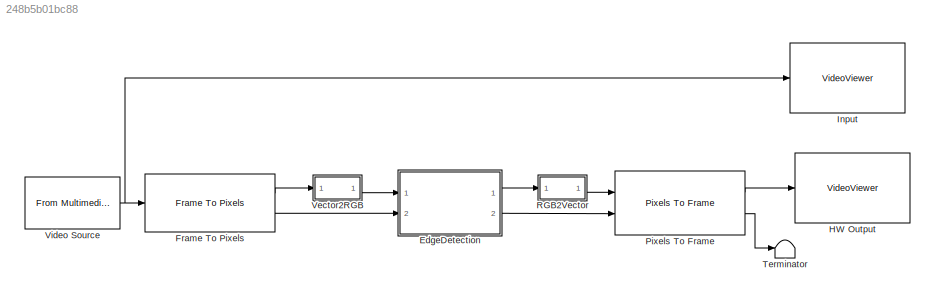
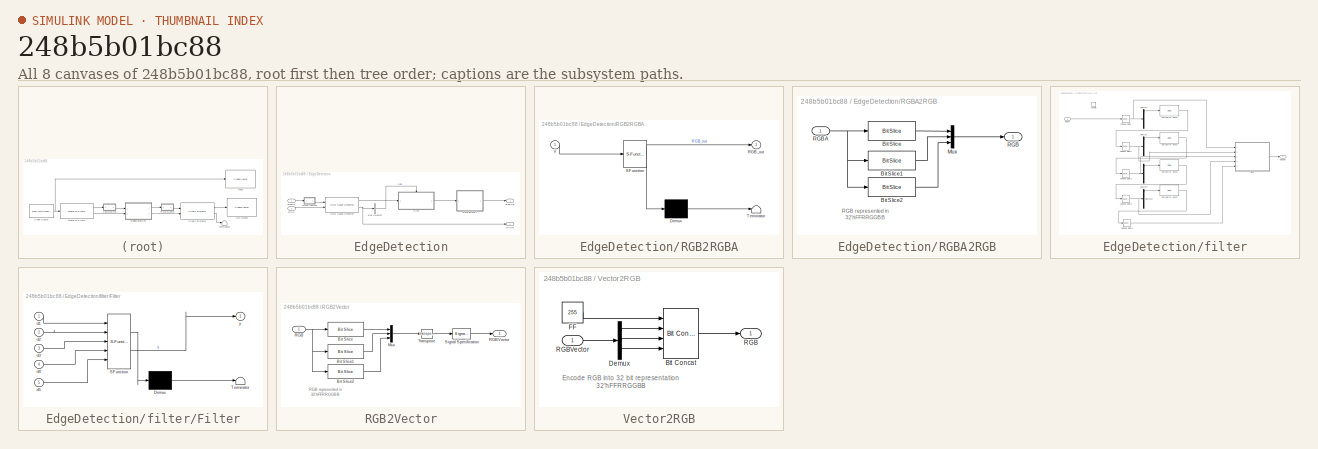
[diagram: thumbnail index - all 8 canvases of the model, root first then tree order]
MODEL slx_248b5b01bc88
KIND model
CONFIG AbsTol = auto
CONFIG EnableMultiTasking = off
CONFIG FixedStep = auto
CONFIG InitFcn = Ts = 1e-3;\nTs_240p = 402*324*Ts;\nTs_480p = 525*800*Ts;\n\n
CONFIG MaxStep = auto
CONFIG MinStep = auto
CONFIG RelTol = 1e-3
CONFIG SampleTimeConstraint = Unconstrained
CONFIG SolverName = VariableStepAuto
CONFIG StartTime = 0.0
CONFIG StopTime = Ts_480p*2
BLOCK [SubSystem] EdgeDetection
  Ports = [2, 2]
  RequestExecContextInheritance = off
  TreatAsAtomicUnit = on
BLOCK [BusSelector] EdgeDetection/Bus Selector
  OutputSignals = valid
  Ports = [1, 1]
BLOCK [Reference] EdgeDetection/Color Space Converter  REF=visionhdlconversions/Color Space Converter
  Ports = [2, 2]
  SourceBlock = visionhdlconversions/Color Space Converter
  SourceProductBaseCode = VT
  SourceType = Color Space Converter
BLOCK [SubSystem] EdgeDetection/RGB2RGBA
  ErrorFcn = Stateflow.Translate.translate
  PermitHierarchicalResolution = ExplicitOnly
  Ports = [1, 1]
  RequestExecContextInheritance = off
  SFBlockType = MATLAB Function
  TreatAsAtomicUnit = on
BLOCK [Demux] EdgeDetection/RGB2RGBA/ Demux 
  Outputs = 1
  Ports = [1, 1]
BLOCK [S-Function] EdgeDetection/RGB2RGBA/ SFunction 
  EnableBusSupport = on
  FunctionName = sf_sfun
  PortCounts = [1 2]
  Ports = [1, 2]
  SFcnIsStateOwnerBlock = off
  SFunctionDeploymentMode = off
  Tag = Stateflow S-Function 1
BLOCK [Terminator] EdgeDetection/RGB2RGBA/ Terminator 
BLOCK [Outport] EdgeDetection/RGB2RGBA/RGB_out
BLOCK [Inport] EdgeDetection/RGB2RGBA/Y
BLOCK [SubSystem] EdgeDetection/RGBA2RGB
  Ports = [1, 1]
  RequestExecContextInheritance = off
  ShowPortLabels = none
BLOCK [Reference] EdgeDetection/RGBA2RGB/Bit Slice  REF=hdlsllib/Logic and Bit
Operations/Bit Slice
  Ports = [1, 1]
  SourceBlock = hdlsllib/Logic and Bit\nOperations/Bit Slice
  SourceProductBaseCode = SL
  SourceType = Bit Slice
BLOCK [Reference] EdgeDetection/RGBA2RGB/Bit Slice1  REF=hdlsllib/Logic and Bit
Operations/Bit Slice
  Ports = [1, 1]
  SourceBlock = hdlsllib/Logic and Bit\nOperations/Bit Slice
  SourceProductBaseCode = SL
  SourceType = Bit Slice
BLOCK [Reference] EdgeDetection/RGBA2RGB/Bit Slice2  REF=hdlsllib/Logic and Bit
Operations/Bit Slice
  Ports = [1, 1]
  SourceBlock = hdlsllib/Logic and Bit\nOperations/Bit Slice
  SourceProductBaseCode = SL
  SourceType = Bit Slice
BLOCK [Mux] EdgeDetection/RGBA2RGB/Mux
  DisplayOption = bar
  Inputs = 3
  Ports = [3, 1]
BLOCK [Outport] EdgeDetection/RGBA2RGB/RGB
  VectorParamsAs1DForOutWhenUnconnected = off
BLOCK [Inport] EdgeDetection/RGBA2RGB/RGBA
BLOCK [Inport] EdgeDetection/ctrlIn
  Port = 2
BLOCK [Outport] EdgeDetection/ctrlOut
  Port = 2
  VectorParamsAs1DForOutWhenUnconnected = off
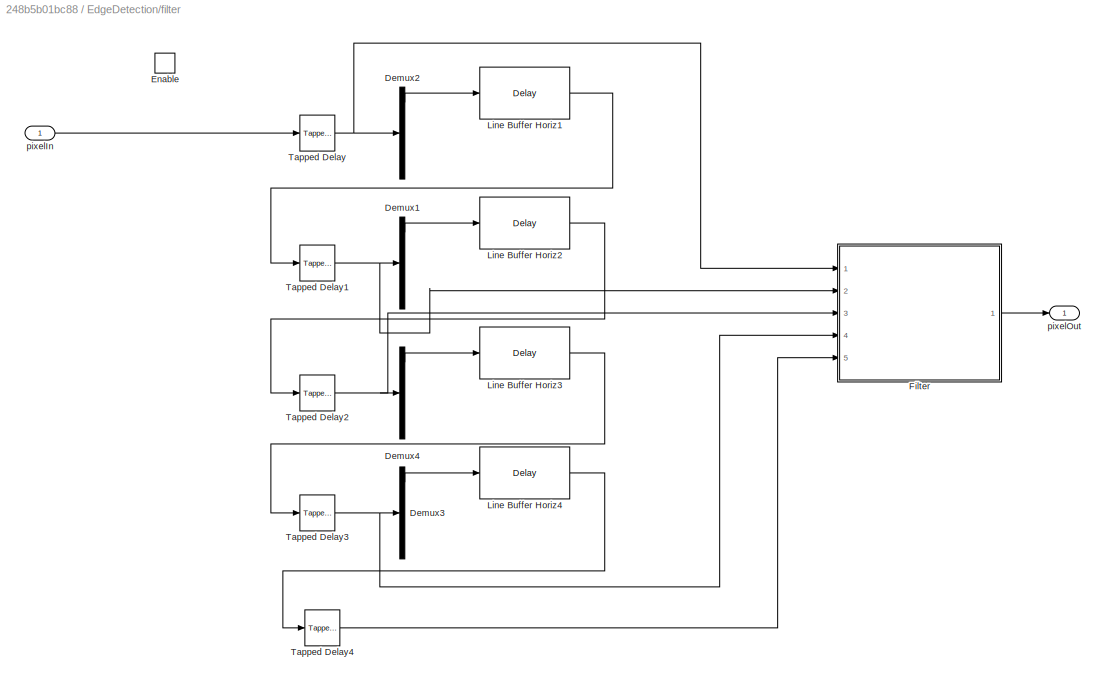
BLOCK [SubSystem] EdgeDetection/filter
  Ports = [1, 1, 1]
  RequestExecContextInheritance = off
BLOCK [Demux] EdgeDetection/filter/Demux1
  DisplayOption = none
  Outputs = 5
  Ports = [1, 5]
BLOCK [Demux] EdgeDetection/filter/Demux2
  DisplayOption = none
  Outputs = 5
  Ports = [1, 5]
BLOCK [Demux] EdgeDetection/filter/Demux3
  DisplayOption = none
  Outputs = 5
  Ports = [1, 5]
BLOCK [Demux] EdgeDetection/filter/Demux4
  DisplayOption = none
  Outputs = 5
  Ports = [1, 5]
BLOCK [EnablePort] EdgeDetection/filter/Enable
  Ports = []
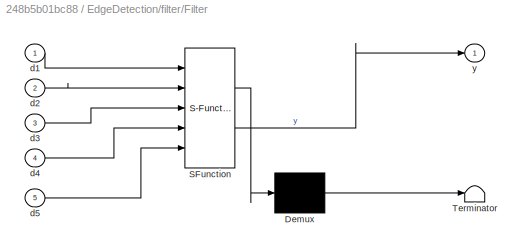
BLOCK [SubSystem] EdgeDetection/filter/Filter
  ErrorFcn = Stateflow.Translate.translate
  PermitHierarchicalResolution = ExplicitOnly
  Ports = [5, 1]
  RequestExecContextInheritance = off
  SFBlockType = MATLAB Function
  TreatAsAtomicUnit = on
BLOCK [Demux] EdgeDetection/filter/Filter/ Demux 
  Outputs = 1
  Ports = [1, 1]
BLOCK [S-Function] EdgeDetection/filter/Filter/ SFunction 
  EnableBusSupport = on
  FunctionName = sf_sfun
  PortCounts = [5 2]
  Ports = [5, 2]
  SFcnIsStateOwnerBlock = off
  SFunctionDeploymentMode = off
  Tag = Stateflow S-Function 2
BLOCK [Terminator] EdgeDetection/filter/Filter/ Terminator 
BLOCK [Inport] EdgeDetection/filter/Filter/d1
BLOCK [Inport] EdgeDetection/filter/Filter/d2
  Port = 2
BLOCK [Inport] EdgeDetection/filter/Filter/d3
  Port = 3
BLOCK [Inport] EdgeDetection/filter/Filter/d4
  Port = 4
BLOCK [Inport] EdgeDetection/filter/Filter/d5
  Port = 5
BLOCK [Outport] EdgeDetection/filter/Filter/y
BLOCK [Delay] EdgeDetection/filter/Line Buffer Horiz1
  DelayLength = 635
  InitialCondition = 0
  InputPortMap = u0
  Ports = [1, 1]
BLOCK [Delay] EdgeDetection/filter/Line Buffer Horiz2
  DelayLength = 635
  InitialCondition = 0
  InputPortMap = u0
  Ports = [1, 1]
BLOCK [Delay] EdgeDetection/filter/Line Buffer Horiz3
  DelayLength = 635
  InitialCondition = 0
  InputPortMap = u0
  Ports = [1, 1]
BLOCK [Delay] EdgeDetection/filter/Line Buffer Horiz4
  DelayLength = 635
  InitialCondition = 0
  InputPortMap = u0
  Ports = [1, 1]
BLOCK [Reference] EdgeDetection/filter/Tapped Delay  REF=simulink/Discrete/Tapped Delay
  Ports = [1, 1]
  SourceBlock = simulink/Discrete/Tapped Delay
  SourceProductBaseCode = SL
  SourceType = Tapped Delay Line
BLOCK [Reference] EdgeDetection/filter/Tapped Delay1  REF=simulink/Discrete/Tapped Delay
  Ports = [1, 1]
  SourceBlock = simulink/Discrete/Tapped Delay
  SourceProductBaseCode = SL
  SourceType = Tapped Delay Line
BLOCK [Reference] EdgeDetection/filter/Tapped Delay2  REF=simulink/Discrete/Tapped Delay
  Ports = [1, 1]
  SourceBlock = simulink/Discrete/Tapped Delay
  SourceProductBaseCode = SL
  SourceType = Tapped Delay Line
BLOCK [Reference] EdgeDetection/filter/Tapped Delay3  REF=simulink/Discrete/Tapped Delay
  Ports = [1, 1]
  SourceBlock = simulink/Discrete/Tapped Delay
  SourceProductBaseCode = SL
  SourceType = Tapped Delay Line
BLOCK [Reference] EdgeDetection/filter/Tapped Delay4  REF=simulink/Discrete/Tapped Delay
  Ports = [1, 1]
  SourceBlock = simulink/Discrete/Tapped Delay
  SourceProductBaseCode = SL
  SourceType = Tapped Delay Line
BLOCK [Inport] EdgeDetection/filter/pixelIn
BLOCK [Outport] EdgeDetection/filter/pixelOut
  InitialOutput = 0
BLOCK [Inport] EdgeDetection/pixelIn
BLOCK [Outport] EdgeDetection/pixelOut
BLOCK [Reference] Frame To Pixels  REF=visionhdlio/Frame To Pixels
  Ports = [1, 2]
  SourceBlock = visionhdlio/Frame To Pixels
  SourceProductBaseCode = VT
  SourceType = Frame To Pixels
BLOCK [VideoViewer] HW Output
  FigPos = [237 717 588 436]
  Ports = [1]
  ScopeSpecificationString = vipscopes.VideoViewerScopeCfg('CurrentConfiguration', extmgr.ConfigurationSet(extmgr.Configuration('Core','General UI',true),extmgr.Configuration('Core','Source UI',true),extmgr.Configuration('Sources','WiredSimulink',true),extmgr.Configuration('Sources','Streaming',false),extmgr.Configuration('Sources','SimulinkEvent',false),extmgr.Configuration('Sources','Workspace',false),extmgr.Configuration('...<+972ch>
  colormapValue = gray(256)
BLOCK [VideoViewer] Input
  FigPos = [896 724 588 436]
  Ports = [1]
  ScopeSpecificationString = vipscopes.VideoViewerScopeCfg('CurrentConfiguration', extmgr.ConfigurationSet(extmgr.Configuration('Core','General UI',true),extmgr.Configuration('Core','Source UI',true),extmgr.Configuration('Sources','WiredSimulink',true),extmgr.Configuration('Sources','Streaming',false),extmgr.Configuration('Sources','SimulinkEvent',false),extmgr.Configuration('Sources','Workspace',false),extmgr.Configuration('...<+972ch>
  colormapValue = gray(256)
BLOCK [Reference] Pixels To Frame  REF=visionhdlio/Pixels To Frame
  Ports = [2, 2]
  SourceBlock = visionhdlio/Pixels To Frame
  SourceProductBaseCode = VT
  SourceType = Pixels To Frame
BLOCK [SubSystem] RGB2Vector
  Ports = [1, 1]
  RequestExecContextInheritance = off
  ShowPortLabels = none
BLOCK [Reference] RGB2Vector/Bit Slice  REF=hdlsllib/Logic and Bit
Operations/Bit Slice
  Ports = [1, 1]
  SourceBlock = hdlsllib/Logic and Bit\nOperations/Bit Slice
  SourceProductBaseCode = SL
  SourceType = Bit Slice
BLOCK [Reference] RGB2Vector/Bit Slice1  REF=hdlsllib/Logic and Bit
Operations/Bit Slice
  Ports = [1, 1]
  SourceBlock = hdlsllib/Logic and Bit\nOperations/Bit Slice
  SourceProductBaseCode = SL
  SourceType = Bit Slice
BLOCK [Reference] RGB2Vector/Bit Slice2  REF=hdlsllib/Logic and Bit
Operations/Bit Slice
  Ports = [1, 1]
  SourceBlock = hdlsllib/Logic and Bit\nOperations/Bit Slice
  SourceProductBaseCode = SL
  SourceType = Bit Slice
BLOCK [Mux] RGB2Vector/Mux
  DisplayOption = bar
  Inputs = 3
  Ports = [3, 1]
BLOCK [Inport] RGB2Vector/RGB
BLOCK [Outport] RGB2Vector/RGBVector
  VectorParamsAs1DForOutWhenUnconnected = off
BLOCK [SignalSpecification] RGB2Vector/Signal Specification
  SignalType = real
BLOCK [Math] RGB2Vector/Transpose
  Operator = transpose
  Ports = [1, 1]
  SignedPower = on
BLOCK [Terminator] Terminator
BLOCK [SubSystem] Vector2RGB
  Ports = [1, 1]
  RequestExecContextInheritance = off
  ShowPortLabels = none
BLOCK [Reference] Vector2RGB/Bit Concat  REF=hdlsllib/Logic and Bit
Operations/Bit Concat
  Ports = [4, 1]
  SourceBlock = hdlsllib/Logic and Bit\nOperations/Bit Concat
  SourceProductBaseCode = SL
  SourceType = Bit Concat
BLOCK [Demux] Vector2RGB/Demux
  Outputs = 3
  Ports = [1, 3]
BLOCK [Constant] Vector2RGB/FF
  OutDataTypeStr = uint8
  SampleTime = Ts
  Value = 255
BLOCK [Outport] Vector2RGB/RGB
  VectorParamsAs1DForOutWhenUnconnected = off
BLOCK [Inport] Vector2RGB/RGBVector
BLOCK [Reference] Video Source  REF=dspvision/From Multimedia File
  Ports = [0, 1]
  SourceBlock = dspvision/From Multimedia File
  SourceProductBaseCode = DS,HW,VP
  SourceType = From Multimedia File
ANNOTATION EdgeDetection/RGBA2RGB: RGB represented in 32'hFFRRGGBB
ANNOTATION RGB2Vector: RGB represented in 32'hFFRRGGBB
ANNOTATION Vector2RGB: Encode RGB into 32 bit representation 32'hFFRRGGBB
LINE EdgeDetection/Bus Selector:1 -> EdgeDetection/filter:enable
LINE EdgeDetection/Color Space Converter:1 -> EdgeDetection/filter:1
NET EdgeDetection/Color Space Converter:2 -> EdgeDetection/Bus Selector:1, EdgeDetection/ctrlOut:1
LINE EdgeDetection/RGB2RGBA:1 -> EdgeDetection/pixelOut:1
LINE EdgeDetection/RGBA2RGB/Bit Slice1:1 -> EdgeDetection/RGBA2RGB/Mux:2
LINE EdgeDetection/RGBA2RGB/Bit Slice2:1 -> EdgeDetection/RGBA2RGB/Mux:3
LINE EdgeDetection/RGBA2RGB/Bit Slice:1 -> EdgeDetection/RGBA2RGB/Mux:1
LINE EdgeDetection/RGBA2RGB/Mux:1 -> EdgeDetection/RGBA2RGB/RGB:1
NET EdgeDetection/RGBA2RGB/RGBA:1 -> EdgeDetection/RGBA2RGB/Bit Slice1:1, EdgeDetection/RGBA2RGB/Bit Slice2:1, EdgeDetection/RGBA2RGB/Bit Slice:1
LINE EdgeDetection/RGBA2RGB:1 -> EdgeDetection/Color Space Converter:1
LINE EdgeDetection/ctrlIn:1 -> EdgeDetection/Color Space Converter:2
LINE EdgeDetection/filter/Demux1:1 -> EdgeDetection/filter/Line Buffer Horiz2:1
LINE EdgeDetection/filter/Demux2:1 -> EdgeDetection/filter/Line Buffer Horiz1:1
LINE EdgeDetection/filter/Demux3:1 -> EdgeDetection/filter/Line Buffer Horiz4:1
LINE EdgeDetection/filter/Demux4:1 -> EdgeDetection/filter/Line Buffer Horiz3:1
LINE EdgeDetection/filter/Filter:1 -> EdgeDetection/filter/pixelOut:1
LINE EdgeDetection/filter/Line Buffer Horiz1:1 -> EdgeDetection/filter/Tapped Delay1:1
LINE EdgeDetection/filter/Line Buffer Horiz2:1 -> EdgeDetection/filter/Tapped Delay2:1
LINE EdgeDetection/filter/Line Buffer Horiz3:1 -> EdgeDetection/filter/Tapped Delay3:1
LINE EdgeDetection/filter/Line Buffer Horiz4:1 -> EdgeDetection/filter/Tapped Delay4:1
NET EdgeDetection/filter/Tapped Delay1:1 -> EdgeDetection/filter/Demux1:1, EdgeDetection/filter/Filter:2
NET EdgeDetection/filter/Tapped Delay2:1 -> EdgeDetection/filter/Demux4:1, EdgeDetection/filter/Filter:3
NET EdgeDetection/filter/Tapped Delay3:1 -> EdgeDetection/filter/Demux3:1, EdgeDetection/filter/Filter:4
LINE EdgeDetection/filter/Tapped Delay4:1 -> EdgeDetection/filter/Filter:5
NET EdgeDetection/filter/Tapped Delay:1 -> EdgeDetection/filter/Demux2:1, EdgeDetection/filter/Filter:1
LINE EdgeDetection/filter/pixelIn:1 -> EdgeDetection/filter/Tapped Delay:1
LINE EdgeDetection/filter:1 -> EdgeDetection/RGB2RGBA:1
LINE EdgeDetection/pixelIn:1 -> EdgeDetection/RGBA2RGB:1
LINE EdgeDetection:1 -> RGB2Vector:1
LINE EdgeDetection:2 -> Pixels To Frame:2
LINE Frame To Pixels:1 -> Vector2RGB:1
LINE Frame To Pixels:2 -> EdgeDetection:2
LINE Pixels To Frame:1 -> HW Output:1
LINE Pixels To Frame:2 -> Terminator:1
LINE RGB2Vector/Bit Slice1:1 -> RGB2Vector/Mux:2
LINE RGB2Vector/Bit Slice2:1 -> RGB2Vector/Mux:3
LINE RGB2Vector/Bit Slice:1 -> RGB2Vector/Mux:1
LINE RGB2Vector/Mux:1 -> RGB2Vector/Transpose:1
NET RGB2Vector/RGB:1 -> RGB2Vector/Bit Slice1:1, RGB2Vector/Bit Slice2:1, RGB2Vector/Bit Slice:1
LINE RGB2Vector/Signal Specification:1 -> RGB2Vector/RGBVector:1
LINE RGB2Vector/Transpose:1 -> RGB2Vector/Signal Specification:1
LINE RGB2Vector:1 -> Pixels To Frame:1
LINE Vector2RGB/Bit Concat:1 -> Vector2RGB/RGB:1
LINE Vector2RGB/Demux:1 -> Vector2RGB/Bit Concat:2
LINE Vector2RGB/Demux:2 -> Vector2RGB/Bit Concat:3
LINE Vector2RGB/Demux:3 -> Vector2RGB/Bit Concat:4
LINE Vector2RGB/FF:1 -> Vector2RGB/Bit Concat:1
LINE Vector2RGB/RGBVector:1 -> Vector2RGB/Demux:1
LINE Vector2RGB:1 -> EdgeDetection:1
NET Video Source:1 -> Frame To Pixels:1, Input:1
note: NET lines group one-source signal fan-out (src -> all destinations, sorted); 1:1 wires keep LINE
CHART EdgeDetection/RGB2RGBA states=1 transitions=1
  STATE_LABEL 'eML_blk_kernel()'
  STATE_LABEL "SCRIPT:\nfunction RGB_out = Concat_Sig(Y)\n% 32'hAARRBBGG\nY = Y *2;\nRd = fi(Y, 0, 8, 0);\nGr = fi(Y, 0, 8, 0);\nBl = fi(Y, 0, 8, 0);\nAA = fi(255, 0, 8, 0);\nRGB_out = bitconcat(AA,Rd,Gr,Bl);\n"
CHART EdgeDetection/filter/Filter states=1 transitions=1
  STATE_LABEL 'eML_blk_kernel()'
  STATE_LABEL "SCRIPT:\nfunction y = fcn(d1,d2,d3,d4,d5)\nd = [d1,d2,d3,d4,d5]';\nd = fi(d,0,8,0);\n% s = sum(sum(d))/fi(25,0,5,0);\n\ndx = d(3,1) + fi(2,0,2,0)*d(3,2) - fi(2,0,2,0)*d(3,4) - d(3,5);\ndy = d(1,3) + fi(2,0,2,0)*d(2,3) - fi(2,0,2,0)*d(4,3) - d(5,3);\ns = (abs(dx) + abs(dy))/fi(2,0,2,0);\n\ny = fi(s, 0, 8, 0);\n \n"
CHART  states=0 transitions=0
CHART  states=0 transitions=0
